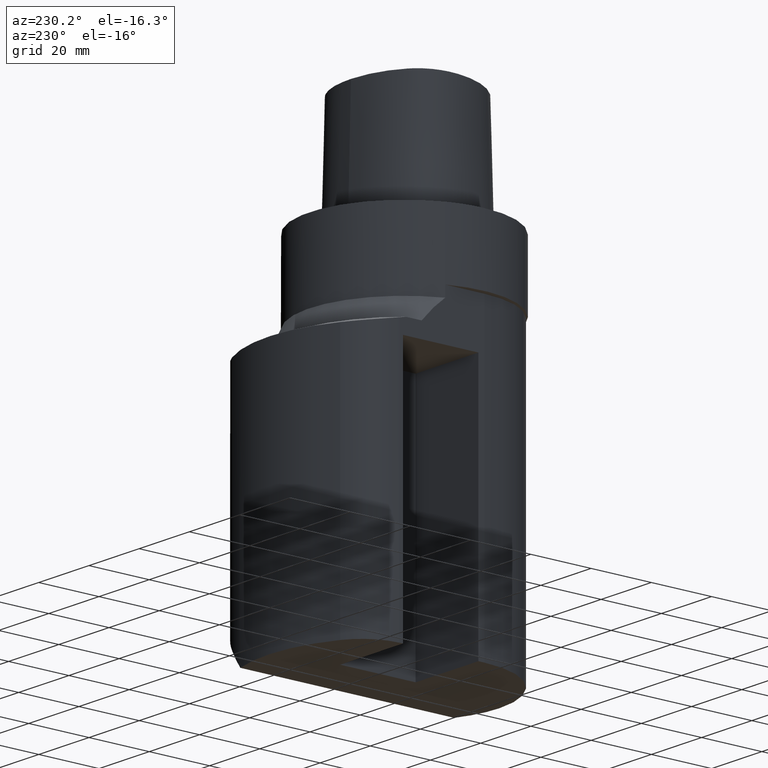
[diagram: clean part render]
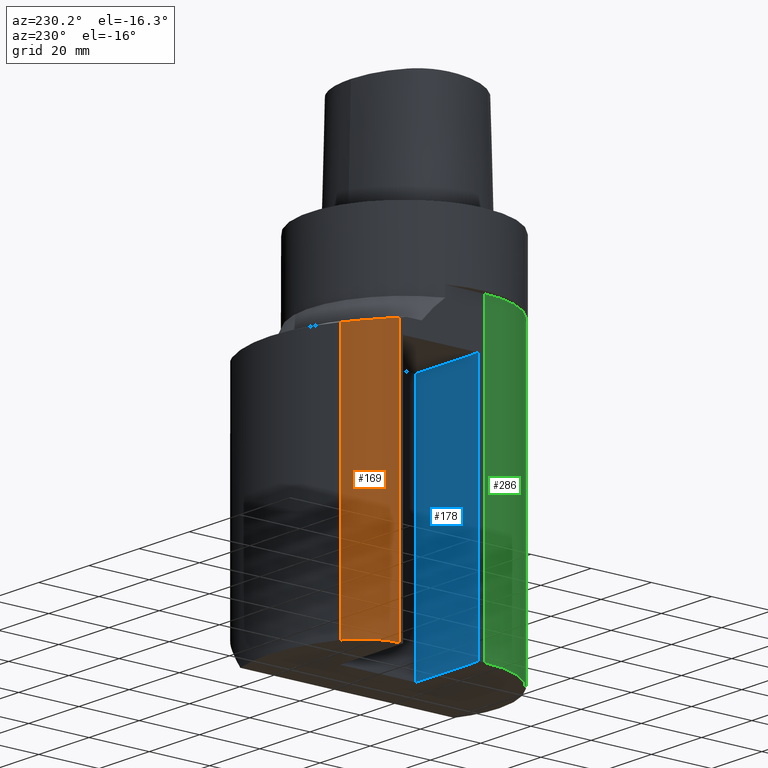
[diagram: same view with three faces highlighted in distinct colors, each labeled with its STEP entity id]
A machine part, auxiliary view with three faces highlighted in distinct colors.
Their STEP definitions:

[orange] entity #169 — the highlighted cylindrical surface (partial cylindrical patch) has radius 15 mm, axis along (-0, -0, -1).
#121=EDGE_CURVE('240[2]',#339,#340,#341,.T.);
#169=ADVANCED_FACE('240[2]',(#413),#414,.T.);
#180=EDGE_CURVE('240[2]',#339,#427,#428,.T.);
#182=EDGE_CURVE('240[2]',#340,#430,#431,.T.);
#248=EDGE_CURVE('240[2]',#430,#427,#515,.T.);
#339=VERTEX_POINT('',#629);
#340=VERTEX_POINT('',#630);
#341=CIRCLE('',#631,15.0);
#413=FACE_OUTER_BOUND('',#739,.T.);
#414=CYLINDRICAL_SURFACE('',#740,15.0);
#427=VERTEX_POINT('',#764);
#428=LINE('',#765,#766);
#430=VERTEX_POINT('',#769);
#431=LINE('',#770,#771);
#515=B_SPLINE_CURVE_WITH_KNOTS('',3,(#1042,#1043,#1044,#1045,#1046,#1047,#1048,#1049,#1050,#1051,#1052,#1053,#1054,#1055),.UNSPECIFIED.,.F.,.F.,(4,2,2,2,2,2,4),(20.9973746455924,23.5692716117923,26.1411685779921,28.7130655441919,31.2849625103918,33.96240920559,36.450862750269),.UNSPECIFIED.);
#629=CARTESIAN_POINT('',(-29.4999999999997,28.263091973338,-119.999996062084));
#630=CARTESIAN_POINT('',(-21.7499999999998,41.3946379600069,-119.999996062083));
#631=AXIS2_PLACEMENT_3D('',#1251,#1252,#1253);
#739=EDGE_LOOP('',(#1316,#1317,#1318,#1319));
#740=AXIS2_PLACEMENT_3D('',#1320,#1321,#1322);
#764=CARTESIAN_POINT('',(-29.4999999999997,28.263091973338,-33.5448033158629));
#765=CARTESIAN_POINT('',(-29.4999999999997,28.2630919733379,-277.139999808573));
#766=VECTOR('',#1335,1.0);
#769=CARTESIAN_POINT('',(-21.7499999999998,41.3946379600069,-35.5477914550081));
#770=CARTESIAN_POINT('',(-21.7499999999998,41.3946379600065,-277.139999808573));
#771=VECTOR('',#1336,1.0);
#1042=CARTESIAN_POINT('',(-21.7499999999998,41.3946379600069,-35.5477914550081));
#1043=CARTESIAN_POINT('',(-22.5005107396582,40.9802767821191,-35.5477914550081));
#1044=CARTESIAN_POINT('',(-23.2420160887207,40.4855444811457,-35.5296979421733));
#1045=CARTESIAN_POINT('',(-24.6417065986044,39.351688722657,-35.4527310445508));
#1046=CARTESIAN_POINT('',(-25.2999243132128,38.7126048118259,-35.393867088097));
#1047=CARTESIAN_POINT('',(-26.4856523085751,37.3281249408024,-35.2366016664237));
#1048=CARTESIAN_POINT('',(-27.0140175305514,36.5817447800543,-35.1380682271849));
#1049=CARTESIAN_POINT('',(-27.9141980900016,35.0350864268983,-34.9077143903142));
#1050=CARTESIAN_POINT('',(-28.2859868119901,34.234799634273,-34.7758477316175));
#1051=CARTESIAN_POINT('',(-28.8816682724347,32.6153569403013,-34.485497463631));
#1052=CARTESIAN_POINT('',(-29.1215294429532,31.7352322251922,-34.3151762120684));
#1053=CARTESIAN_POINT('',(-29.4249720215719,29.9879182267493,-33.9476639888106));
#1054=CARTESIAN_POINT('',(-29.4998622149782,29.1242176615687,-33.7531898964707));
#1055=CARTESIAN_POINT('',(-29.4999848783955,28.26309252926,-33.5448010097216));
#1251=CARTESIAN_POINT('',(-14.4999999999998,28.263091973338,-119.999996062084));
#1252=DIRECTION('',(-6.12323399573674E-017,2.40390949167675E-015,-1.0));
#1253=DIRECTION('',(1.0,-2.4492935982947E-016,-6.1232339957368E-017));
#1316=ORIENTED_EDGE('',*,*,#121,.F.);
#1317=ORIENTED_EDGE('',*,*,#180,.T.);
#1318=ORIENTED_EDGE('',*,*,#248,.F.);
#1319=ORIENTED_EDGE('',*,*,#182,.F.);
#1320=CARTESIAN_POINT('',(-14.4999999999998,28.2630919733379,-277.139999808573));
#1321=DIRECTION('',(-6.12323399573676E-017,-1.22464679914735E-016,-1.0));
#1322=DIRECTION('',(1.0,-2.4492935982947E-016,-6.12323399573676E-017));
#1335=DIRECTION('',(6.12323399573677E-017,1.22464679914735E-016,1.0));
#1336=DIRECTION('',(6.12323399573677E-017,1.22464679914735E-016,1.0));

[blue] entity #178 — the highlighted planar face has unit normal (-0, -1, 0).
#123=EDGE_CURVE('240[2]',#343,#344,#345,.F.);
#171=EDGE_CURVE('240[2]',#344,#378,#416,.F.);
#178=ADVANCED_FACE('240[2]',(#424),#425,.F.);
#256=EDGE_CURVE('240[2]',#433,#343,#526,.T.);
#283=EDGE_CURVE('240[2]',#378,#433,#557,.T.);
#343=VERTEX_POINT('',#634);
#344=VERTEX_POINT('',#635);
#345=LINE('',#636,#637);
#378=VERTEX_POINT('',#680);
#416=LINE('',#743,#744);
#424=FACE_OUTER_BOUND('',#760,.T.);
#425=PLANE('',#761);
#433=VERTEX_POINT('',#774);
#526=LINE('',#1069,#1070);
#557=LINE('',#1200,#1201);
#634=CARTESIAN_POINT('',(-4.49999999999972,2.00000000000035,-37.9999998151459));
#635=CARTESIAN_POINT('',(-29.4999999999997,2.00000000000035,-37.999999815146));
#636=CARTESIAN_POINT('',(-23.2499999999995,2.00000000000035,-37.9999998151459));
#637=VECTOR('',#1254,1.0);
#680=CARTESIAN_POINT('',(-29.4999999999997,2.00000000000034,-119.999996062084));
#743=CARTESIAN_POINT('',(-29.4999999999997,2.00000000000032,-277.139999808573));
#744=VECTOR('',#1323,1.0);
#760=EDGE_LOOP('',(#1328,#1329,#1330,#1331));
#761=AXIS2_PLACEMENT_3D('',#1332,#1333,#1334);
#774=CARTESIAN_POINT('',(-4.49999999999972,2.00000000000034,-119.999996062084));
#1069=CARTESIAN_POINT('',(-4.49999999999973,2.00000000000032,-277.139999808573));
#1070=VECTOR('',#1457,1.0);
#1200=CARTESIAN_POINT('',(-8.4999999999998,2.00000000000034,-119.999996062084));
#1201=VECTOR('',#1496,1.0);
#1254=DIRECTION('',(1.0,-1.22464679914735E-016,-6.12323399573677E-017));
#1323=DIRECTION('',(6.12323399573677E-017,1.22464679915552E-016,1.0));
#1328=ORIENTED_EDGE('',*,*,#283,.F.);
#1329=ORIENTED_EDGE('',*,*,#171,.F.);
#1330=ORIENTED_EDGE('',*,*,#123,.F.);
#1331=ORIENTED_EDGE('',*,*,#256,.F.);
#1332=CARTESIAN_POINT('',(-16.9999999999996,2.00000000000032,-277.139999808573));
#1333=DIRECTION('',(-1.22464679914735E-016,-1.0,1.22464679915552E-016));
#1334=DIRECTION('',(-1.0,1.22464679914735E-016,-4.28161247116036E-046));
#1457=DIRECTION('',(6.12323399573677E-017,1.22464679915552E-016,1.0));
#1496=DIRECTION('',(1.0,-1.22464679914735E-016,-6.12323399573677E-017));

[green] entity #286 — the highlighted cylindrical surface (partial cylindrical patch) has radius 29.5 mm, axis along (-0, -0, -1).
#155=EDGE_CURVE('240[2]',#377,#393,#394,.T.);
#163=EDGE_CURVE('240[2]',#405,#367,#406,.T.);
#173=EDGE_CURVE('240[2]',#373,#367,#418,.T.);
#198=EDGE_CURVE('240[2]',#405,#377,#453,.T.);
#246=EDGE_CURVE('240[2]',#512,#373,#513,.T.);
#273=EDGE_CURVE('240[2]',#512,#393,#547,.T.);
#286=ADVANCED_FACE('240[2]',(#560),#561,.T.);
#367=VERTEX_POINT('',#666);
#373=VERTEX_POINT('',#674);
#377=VERTEX_POINT('',#679);
#393=VERTEX_POINT('',#701);
#394=LINE('',#702,#703);
#405=VERTEX_POINT('',#728);
#406=LINE('',#729,#730);
#418=B_SPLINE_CURVE_WITH_KNOTS('',3,(#747,#748,#749,#750,#751,#752),.UNSPECIFIED.,.F.,.F.,(4,2,4),(17.8907883770066,17.9274304301599,20.4884919201827),.UNSPECIFIED.);
#453=CIRCLE('',#841,29.4999999999998);
#512=VERTEX_POINT('',#1037);
#513=LINE('',#1038,#1039);
#547=CIRCLE('',#1167,29.4999999999998);
#560=FACE_OUTER_BOUND('',#1205,.T.);
#561=CYLINDRICAL_SURFACE('',#1206,29.4999999999998);
#666=CARTESIAN_POINT('',(-7.10383373929294E-015,-29.4999999999997,-25.513368799103));
#674=CARTESIAN_POINT('',(-2.6371566352526,-29.3818890625015,-25.4973260183548));
#679=CARTESIAN_POINT('',(-29.4999999999997,3.61270805748466E-015,-119.999996062084));
#701=CARTESIAN_POINT('',(-29.4999999999997,6.4366370370831E-015,-22.0000000000001));
#702=CARTESIAN_POINT('',(-29.4999999999997,-2.48090013729193E-014,-277.139999808573));
#703=VECTOR('',#1300,1.0);
#728=CARTESIAN_POINT('',(-1.28894710212848E-014,-29.4999999999997,-119.999996062084));
#729=CARTESIAN_POINT('',(-2.25115211515919E-014,-29.4999999999998,-277.139999808573));
#730=VECTOR('',#1305,1.0);
#747=CARTESIAN_POINT('',(-2.63715662717227,-29.3818889740756,-25.4973260067785));
#748=CARTESIAN_POINT('',(-2.62461178464014,-29.3830149886601,-25.4974789690924));
#749=CARTESIAN_POINT('',(-2.61206842572383,-29.384132743172,-25.4976308089391));
#750=CARTESIAN_POINT('',(-1.72292575971574,-29.462789572655,-25.5083158142546));
#751=CARTESIAN_POINT('',(-0.853687163340957,-29.4999999999998,-25.5133687991031));
#752=CARTESIAN_POINT('',(-1.74904958652992E-014,-29.4999999999998,-25.5133687991031));
#841=AXIS2_PLACEMENT_3D('',#1343,#1344,#1345);
#1037=CARTESIAN_POINT('',(-2.63715663526344,-29.3818890625002,-22.0000000000001));
#1038=CARTESIAN_POINT('',(-2.63715663536174,-29.3818890624915,-277.139999808572));
#1039=VECTOR('',#1437,1.0);
#1167=AXIS2_PLACEMENT_3D('',#1488,#1489,#1490);
#1205=EDGE_LOOP('',(#1498,#1499,#1500,#1501,#1502,#1503));
#1206=AXIS2_PLACEMENT_3D('',#1504,#1505,#1506);
#1300=DIRECTION('',(6.12323399573677E-017,1.22464679914735E-016,1.0));
#1305=DIRECTION('',(6.12323399573677E-017,1.22464679914735E-016,1.0));
#1343=CARTESIAN_POINT('',(-7.34788055375627E-015,8.9985584006747E-031,-119.999996062084));
#1344=DIRECTION('',(-6.12323399573674E-017,2.40390949167675E-015,-1.0));
#1345=DIRECTION('',(1.0,-2.4492935982947E-016,-6.1232339957368E-017));
#1437=DIRECTION('',(-6.12323399573677E-017,-1.22464679914735E-016,-1.0));
#1488=CARTESIAN_POINT('',(-1.34711147906206E-015,2.82392897959844E-015,-22.0000000000001));
#1489=DIRECTION('',(0.0,-0.0,-1.0));
#1490=DIRECTION('',(1.0,-2.4492935982947E-016,0.0));
#1498=ORIENTED_EDGE('',*,*,#273,.T.);
#1499=ORIENTED_EDGE('',*,*,#155,.F.);
#1500=ORIENTED_EDGE('',*,*,#198,.F.);
#1501=ORIENTED_EDGE('',*,*,#163,.T.);
#1502=ORIENTED_EDGE('',*,*,#173,.F.);
#1503=ORIENTED_EDGE('',*,*,#246,.F.);
#1504=CARTESIAN_POINT('',(-1.69699306840633E-014,-2.8421709430404E-014,-277.139999808573));
#1505=DIRECTION('',(-6.12323399573676E-017,-1.22464679914735E-016,-1.0));
#1506=DIRECTION('',(1.0,-2.4492935982947E-016,-6.12323399573676E-017));